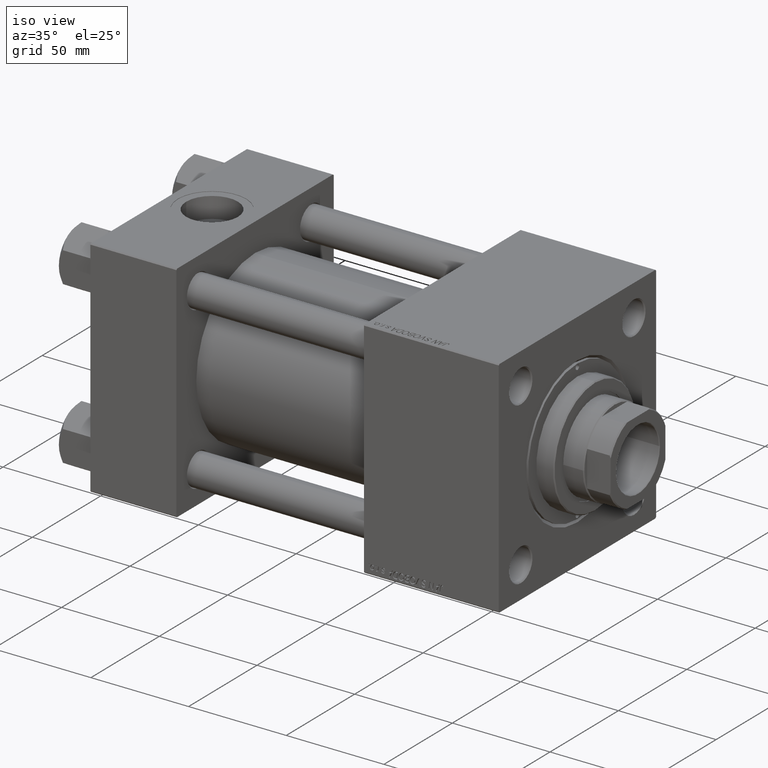
[diagram: clean part render]
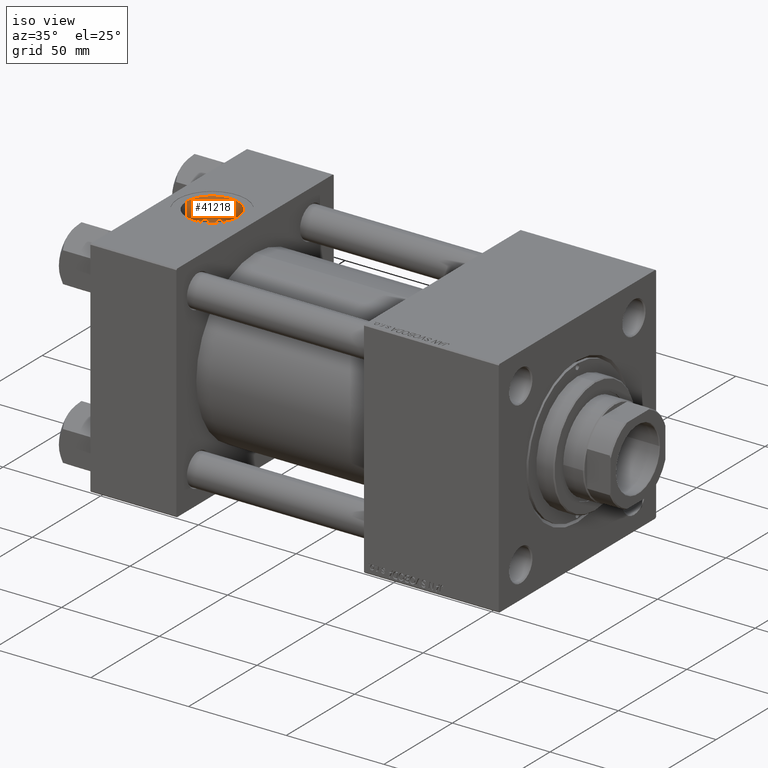
[diagram: same view with one face highlighted and labeled with its STEP entity id]
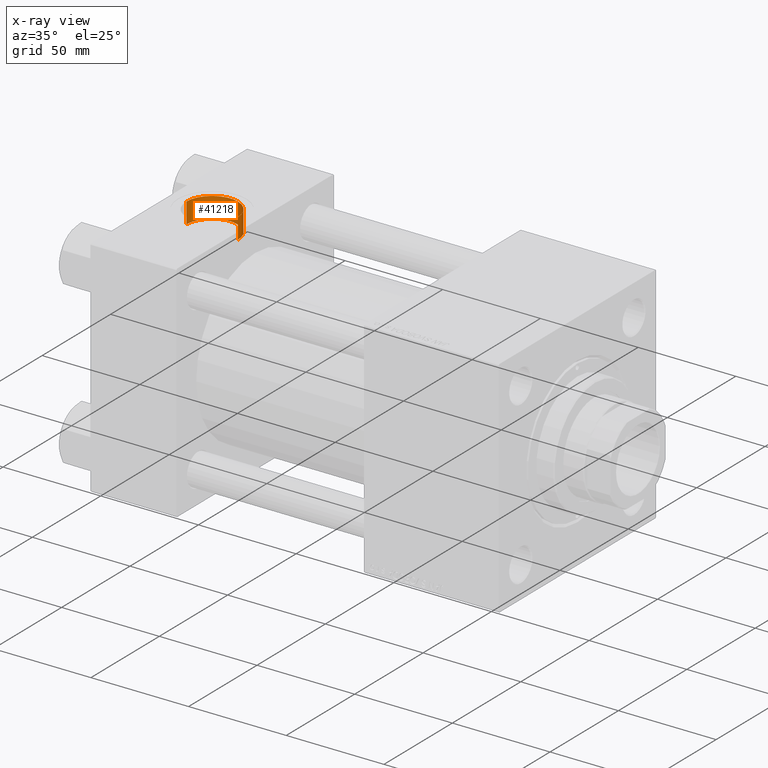
[diagram: x-ray of the same camera — body ghosted, the highlighted face saturated]
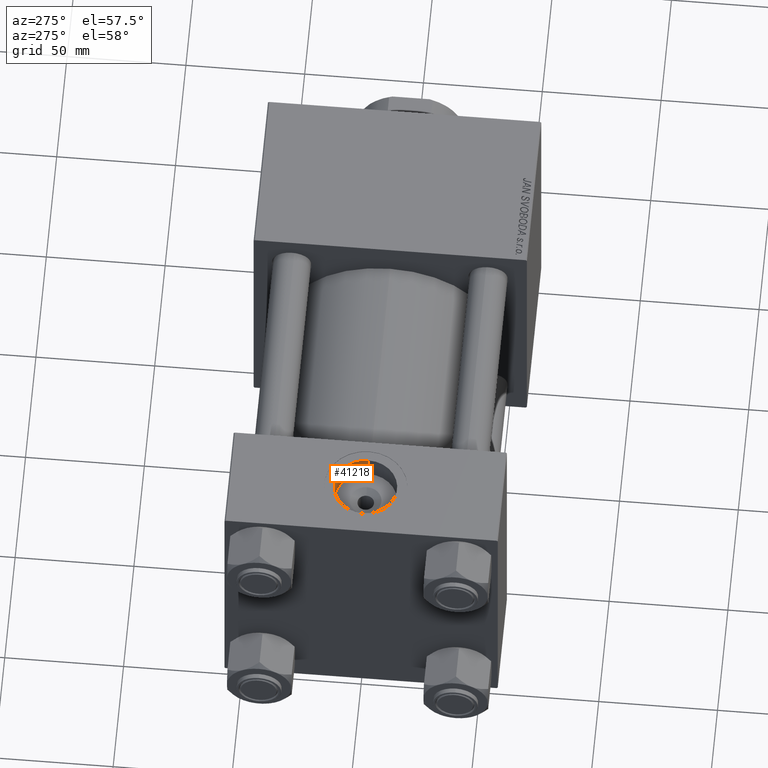
[diagram: same view with one face highlighted and labeled with its STEP entity id]
A machine part, iso view. The second image highlights one B-rep face of the part: STEP entity #41218.
The next image is the same camera in x-ray: the body ghosted, the highlighted face saturated — about 0% of this face is hidden behind the body in this view.
A second angle (auxiliary view) of the same face is appended — the face is thin or edge-on in the first view.
In plain terms, the highlighted cylindrical surface (edge-blend (fillet) strip) has radius 13.22 mm, axis along (0, 0, 1).
Its self-contained STEP definition (entity closure, byte-faithful):
#147 = CARTESIAN_POINT ( 'NONE',  ( 8.779999999999994031, -7.054634311411234321E-15, 46.70000000000000284 ) ) ;
#654 = LINE ( 'NONE', #147, #16598 ) ;
#938 = DIRECTION ( 'NONE',  ( 0.000000000000000000, 0.000000000000000000, 1.000000000000000000 ) ) ;
#1459 = CARTESIAN_POINT ( 'NONE',  ( 22.00000000000000000, -8.673617379884035472E-15, 57.30000000000000426 ) ) ;
#2911 = ORIENTED_EDGE ( 'NONE', *, *, #24951, .T. ) ;
#4184 = CARTESIAN_POINT ( 'NONE',  ( 35.21999999999999886, -8.673617379884035472E-15, 57.30000000000000426 ) ) ;
#4634 = FACE_OUTER_BOUND ( 'NONE', #26628, .T. ) ;
#9050 = AXIS2_PLACEMENT_3D ( 'NONE', #19617, #20119, #31924 ) ;
#10306 = VERTEX_POINT ( 'NONE', #4184 ) ;
#10987 = VERTEX_POINT ( 'NONE', #38843 ) ;
#12631 = EDGE_CURVE ( 'NONE', #22062, #20596, #26271, .T. ) ;
#14352 = VECTOR ( 'NONE', #40704, 1000.000000000000000 ) ;
#15654 = CYLINDRICAL_SURFACE ( 'NONE', #45471, 13.22000000000000242 ) ;
#16598 = VECTOR ( 'NONE', #24236, 1000.000000000000000 ) ;
#16865 = AXIS2_PLACEMENT_3D ( 'NONE', #1459, #938, #36858 ) ;
#19617 = CARTESIAN_POINT ( 'NONE',  ( 22.00000000000000000, -8.673617379884035472E-15, 46.70000000000000284 ) ) ;
#20119 = DIRECTION ( 'NONE',  ( 0.000000000000000000, 0.000000000000000000, 1.000000000000000000 ) ) ;
#20337 = ORIENTED_EDGE ( 'NONE', *, *, #37532, .F. ) ;
#20596 = VERTEX_POINT ( 'NONE', #36931 ) ;
#20771 = ORIENTED_EDGE ( 'NONE', *, *, #26010, .T. ) ;
#22062 = VERTEX_POINT ( 'NONE', #45948 ) ;
#23420 = CIRCLE ( 'NONE', #16865, 13.22000000000000242 ) ;
#24236 = DIRECTION ( 'NONE',  ( -0.000000000000000000, -0.000000000000000000, 1.000000000000000000 ) ) ;
#24951 = EDGE_CURVE ( 'NONE', #22062, #10306, #35593, .T. ) ;
#26010 = EDGE_CURVE ( 'NONE', #10306, #10987, #23420, .T. ) ;
#26271 = CIRCLE ( 'NONE', #9050, 13.22000000000000242 ) ;
#26628 = EDGE_LOOP ( 'NONE', ( #20337, #34386, #2911, #20771 ) ) ;
#31069 = CARTESIAN_POINT ( 'NONE',  ( 22.00000000000000000, -8.673617379884035472E-15, 46.70000000000000284 ) ) ;
#31924 = DIRECTION ( 'NONE',  ( 1.000000000000000000, 0.000000000000000000, 0.000000000000000000 ) ) ;
#34386 = ORIENTED_EDGE ( 'NONE', *, *, #12631, .F. ) ;
#35593 = LINE ( 'NONE', #47942, #14352 ) ;
#35694 = DIRECTION ( 'NONE',  ( 1.000000000000000000, 0.000000000000000000, 0.000000000000000000 ) ) ;
#36858 = DIRECTION ( 'NONE',  ( 1.000000000000000000, 0.000000000000000000, 0.000000000000000000 ) ) ;
#36931 = CARTESIAN_POINT ( 'NONE',  ( 8.779999999999994031, -7.054634311411234321E-15, 46.70000000000000284 ) ) ;
#37532 = EDGE_CURVE ( 'NONE', #20596, #10987, #654, .T. ) ;
#38843 = CARTESIAN_POINT ( 'NONE',  ( 8.779999999999994031, -7.054634311411234321E-15, 57.30000000000000426 ) ) ;
#39546 = DIRECTION ( 'NONE',  ( -0.000000000000000000, -0.000000000000000000, 1.000000000000000000 ) ) ;
#40704 = DIRECTION ( 'NONE',  ( -0.000000000000000000, -0.000000000000000000, 1.000000000000000000 ) ) ;
#41218 = ADVANCED_FACE ( 'NONE', ( #4634 ), #15654, .F. ) ;
#45471 = AXIS2_PLACEMENT_3D ( 'NONE', #31069, #39546, #35694 ) ;
#45948 = CARTESIAN_POINT ( 'NONE',  ( 35.21999999999999886, -8.673617379884035472E-15, 46.70000000000000284 ) ) ;
#47942 = CARTESIAN_POINT ( 'NONE',  ( 35.21999999999999886, -8.673617379884035472E-15, 46.70000000000000284 ) ) ;